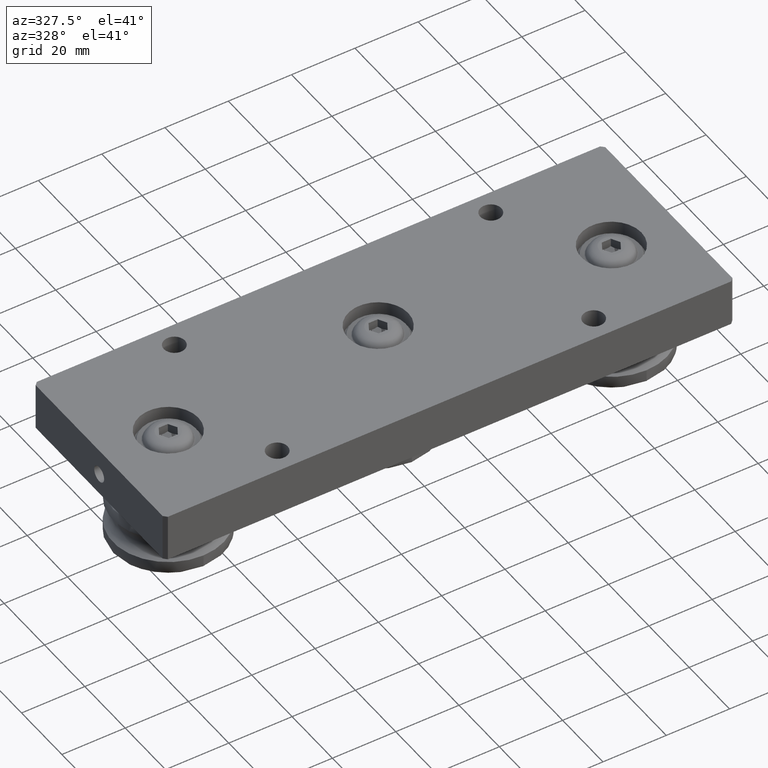
[diagram: clean part render]
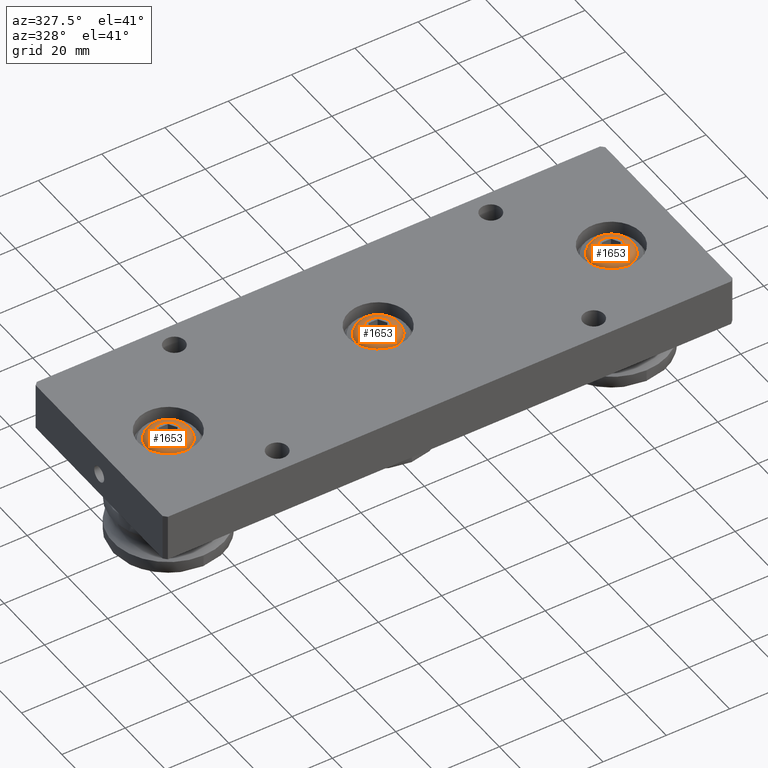
[diagram: same view with one multi-face feature highlighted, each face labeled with its STEP entity id]
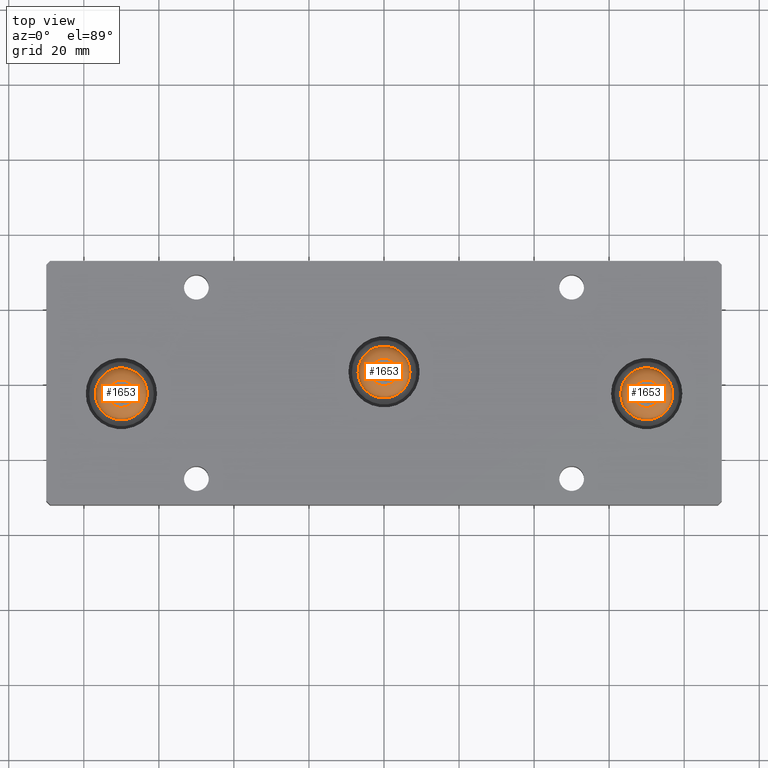
[diagram: same view with one multi-face feature highlighted, each face labeled with its STEP entity id]
A machine part, auxiliary view. The highlighted faces form ONE feature: a constant-radius fillet chain: 3 tangent blend faces with common blend radius 3.35 mm. The faces share edges in the B-rep.
A second angle (top view) of the same feature is appended — it is thin or edge-on in the first view.
Their STEP definitions:
[1] entity #1653 (Torus):
#68=TOROIDAL_SURFACE('',#1953,3.65,3.35);
#225=CIRCLE('',#1932,6.91280751637128);
#226=CIRCLE('',#1933,6.91280751637128);
#238=CIRCLE('',#1954,3.35);
#239=CIRCLE('',#1955,3.65);
#334=FACE_OUTER_BOUND('',#459,.T.);
#459=EDGE_LOOP('',(#1271,#1272,#1273,#1274,#1275));
#792=VERTEX_POINT('',#2741);
#793=VERTEX_POINT('',#2743);
#803=VERTEX_POINT('',#2778);
#952=EDGE_CURVE('',#792,#793,#225,.T.);
#953=EDGE_CURVE('',#793,#792,#226,.T.);
#968=EDGE_CURVE('',#793,#803,#238,.T.);
#969=EDGE_CURVE('',#803,#803,#239,.T.);
#1271=ORIENTED_EDGE('',*,*,#953,.F.);
#1272=ORIENTED_EDGE('',*,*,#968,.T.);
#1273=ORIENTED_EDGE('',*,*,#969,.T.);
#1274=ORIENTED_EDGE('',*,*,#968,.F.);
#1275=ORIENTED_EDGE('',*,*,#952,.F.);
#1653=ADVANCED_FACE('',(#334),#68,.T.);
#1932=AXIS2_PLACEMENT_3D('',#2744,#2234,#2235);
#1933=AXIS2_PLACEMENT_3D('',#2745,#2236,#2237);
#1953=AXIS2_PLACEMENT_3D('',#2777,#2279,#2280);
#1954=AXIS2_PLACEMENT_3D('',#2779,#2281,#2282);
#1955=AXIS2_PLACEMENT_3D('',#2780,#2283,#2284);
#2234=DIRECTION('center_axis',(1.,4.96452601381397E-18,-3.70074341541719E-16));
#2235=DIRECTION('ref_axis',(0.,5.4532548137089E-19,-1.));
#2236=DIRECTION('center_axis',(1.,4.96452601381397E-18,-3.70074341541719E-16));
#2237=DIRECTION('ref_axis',(0.,5.4532548137089E-19,-1.));
#2279=DIRECTION('center_axis',(1.,9.92905202762793E-18,0.));
#2280=DIRECTION('ref_axis',(0.,0.,-1.));
#2281=DIRECTION('center_axis',(9.92905202762793E-18,-1.,-1.22464679914735E-16));
#2282=DIRECTION('ref_axis',(0.,-1.22464679914735E-16,1.));
#2283=DIRECTION('center_axis',(1.,9.92905202762793E-18,0.));
#2284=DIRECTION('ref_axis',(9.92905202762793E-18,-1.,1.22464679914735E-16));
#2741=CARTESIAN_POINT('',(-1.80933333333334,-9.79918618851619E-16,-6.91280751637128));
#2743=CARTESIAN_POINT('',(-1.80933333333334,-9.87458079024598E-16,6.91280751637128));
#2744=CARTESIAN_POINT('Origin',(-1.80933333333334,-1.37113589133523E-16,
0.));
#2745=CARTESIAN_POINT('Origin',(-1.80933333333334,-1.37113589133523E-16,
0.));
#2777=CARTESIAN_POINT('Origin',(-1.05,-1.29574128960545E-16,0.));
#2778=CARTESIAN_POINT('',(-4.4,-6.09832534941882E-16,3.65));
#2779=CARTESIAN_POINT('Origin',(-1.05,-5.76570210649329E-16,3.65));
#2780=CARTESIAN_POINT('Origin',(-4.4,-1.62836453253098E-16,0.));
[2] entity #1653 (Torus):
#68=TOROIDAL_SURFACE('',#1953,3.65,3.35);
#225=CIRCLE('',#1932,6.91280751637128);
#226=CIRCLE('',#1933,6.91280751637128);
#238=CIRCLE('',#1954,3.35);
#239=CIRCLE('',#1955,3.65);
#334=FACE_OUTER_BOUND('',#459,.T.);
#459=EDGE_LOOP('',(#1271,#1272,#1273,#1274,#1275));
#792=VERTEX_POINT('',#2741);
#793=VERTEX_POINT('',#2743);
#803=VERTEX_POINT('',#2778);
#952=EDGE_CURVE('',#792,#793,#225,.T.);
#953=EDGE_CURVE('',#793,#792,#226,.T.);
#968=EDGE_CURVE('',#793,#803,#238,.T.);
#969=EDGE_CURVE('',#803,#803,#239,.T.);
#1271=ORIENTED_EDGE('',*,*,#953,.F.);
#1272=ORIENTED_EDGE('',*,*,#968,.T.);
#1273=ORIENTED_EDGE('',*,*,#969,.T.);
#1274=ORIENTED_EDGE('',*,*,#968,.F.);
#1275=ORIENTED_EDGE('',*,*,#952,.F.);
#1653=ADVANCED_FACE('',(#334),#68,.T.);
#1932=AXIS2_PLACEMENT_3D('',#2744,#2234,#2235);
#1933=AXIS2_PLACEMENT_3D('',#2745,#2236,#2237);
#1953=AXIS2_PLACEMENT_3D('',#2777,#2279,#2280);
#1954=AXIS2_PLACEMENT_3D('',#2779,#2281,#2282);
#1955=AXIS2_PLACEMENT_3D('',#2780,#2283,#2284);
#2234=DIRECTION('center_axis',(1.,4.96452601381397E-18,-3.70074341541719E-16));
#2235=DIRECTION('ref_axis',(0.,5.4532548137089E-19,-1.));
#2236=DIRECTION('center_axis',(1.,4.96452601381397E-18,-3.70074341541719E-16));
#2237=DIRECTION('ref_axis',(0.,5.4532548137089E-19,-1.));
#2279=DIRECTION('center_axis',(1.,9.92905202762793E-18,0.));
#2280=DIRECTION('ref_axis',(0.,0.,-1.));
#2281=DIRECTION('center_axis',(9.92905202762793E-18,-1.,-1.22464679914735E-16));
#2282=DIRECTION('ref_axis',(0.,-1.22464679914735E-16,1.));
#2283=DIRECTION('center_axis',(1.,9.92905202762793E-18,0.));
#2284=DIRECTION('ref_axis',(9.92905202762793E-18,-1.,1.22464679914735E-16));
#2741=CARTESIAN_POINT('',(-1.80933333333334,-9.79918618851619E-16,-6.91280751637128));
#2743=CARTESIAN_POINT('',(-1.80933333333334,-9.87458079024598E-16,6.91280751637128));
#2744=CARTESIAN_POINT('Origin',(-1.80933333333334,-1.37113589133523E-16,
0.));
#2745=CARTESIAN_POINT('Origin',(-1.80933333333334,-1.37113589133523E-16,
0.));
#2777=CARTESIAN_POINT('Origin',(-1.05,-1.29574128960545E-16,0.));
#2778=CARTESIAN_POINT('',(-4.4,-6.09832534941882E-16,3.65));
#2779=CARTESIAN_POINT('Origin',(-1.05,-5.76570210649329E-16,3.65));
#2780=CARTESIAN_POINT('Origin',(-4.4,-1.62836453253098E-16,0.));
[3] entity #1653 (Torus):
#68=TOROIDAL_SURFACE('',#1953,3.65,3.35);
#225=CIRCLE('',#1932,6.91280751637128);
#226=CIRCLE('',#1933,6.91280751637128);
#238=CIRCLE('',#1954,3.35);
#239=CIRCLE('',#1955,3.65);
#334=FACE_OUTER_BOUND('',#459,.T.);
#459=EDGE_LOOP('',(#1271,#1272,#1273,#1274,#1275));
#792=VERTEX_POINT('',#2741);
#793=VERTEX_POINT('',#2743);
#803=VERTEX_POINT('',#2778);
#952=EDGE_CURVE('',#792,#793,#225,.T.);
#953=EDGE_CURVE('',#793,#792,#226,.T.);
#968=EDGE_CURVE('',#793,#803,#238,.T.);
#969=EDGE_CURVE('',#803,#803,#239,.T.);
#1271=ORIENTED_EDGE('',*,*,#953,.F.);
#1272=ORIENTED_EDGE('',*,*,#968,.T.);
#1273=ORIENTED_EDGE('',*,*,#969,.T.);
#1274=ORIENTED_EDGE('',*,*,#968,.F.);
#1275=ORIENTED_EDGE('',*,*,#952,.F.);
#1653=ADVANCED_FACE('',(#334),#68,.T.);
#1932=AXIS2_PLACEMENT_3D('',#2744,#2234,#2235);
#1933=AXIS2_PLACEMENT_3D('',#2745,#2236,#2237);
#1953=AXIS2_PLACEMENT_3D('',#2777,#2279,#2280);
#1954=AXIS2_PLACEMENT_3D('',#2779,#2281,#2282);
#1955=AXIS2_PLACEMENT_3D('',#2780,#2283,#2284);
#2234=DIRECTION('center_axis',(1.,4.96452601381397E-18,-3.70074341541719E-16));
#2235=DIRECTION('ref_axis',(0.,5.4532548137089E-19,-1.));
#2236=DIRECTION('center_axis',(1.,4.96452601381397E-18,-3.70074341541719E-16));
#2237=DIRECTION('ref_axis',(0.,5.4532548137089E-19,-1.));
#2279=DIRECTION('center_axis',(1.,9.92905202762793E-18,0.));
#2280=DIRECTION('ref_axis',(0.,0.,-1.));
#2281=DIRECTION('center_axis',(9.92905202762793E-18,-1.,-1.22464679914735E-16));
#2282=DIRECTION('ref_axis',(0.,-1.22464679914735E-16,1.));
#2283=DIRECTION('center_axis',(1.,9.92905202762793E-18,0.));
#2284=DIRECTION('ref_axis',(9.92905202762793E-18,-1.,1.22464679914735E-16));
#2741=CARTESIAN_POINT('',(-1.80933333333334,-9.79918618851619E-16,-6.91280751637128));
#2743=CARTESIAN_POINT('',(-1.80933333333334,-9.87458079024598E-16,6.91280751637128));
#2744=CARTESIAN_POINT('Origin',(-1.80933333333334,-1.37113589133523E-16,
0.));
#2745=CARTESIAN_POINT('Origin',(-1.80933333333334,-1.37113589133523E-16,
0.));
#2777=CARTESIAN_POINT('Origin',(-1.05,-1.29574128960545E-16,0.));
#2778=CARTESIAN_POINT('',(-4.4,-6.09832534941882E-16,3.65));
#2779=CARTESIAN_POINT('Origin',(-1.05,-5.76570210649329E-16,3.65));
#2780=CARTESIAN_POINT('Origin',(-4.4,-1.62836453253098E-16,0.));